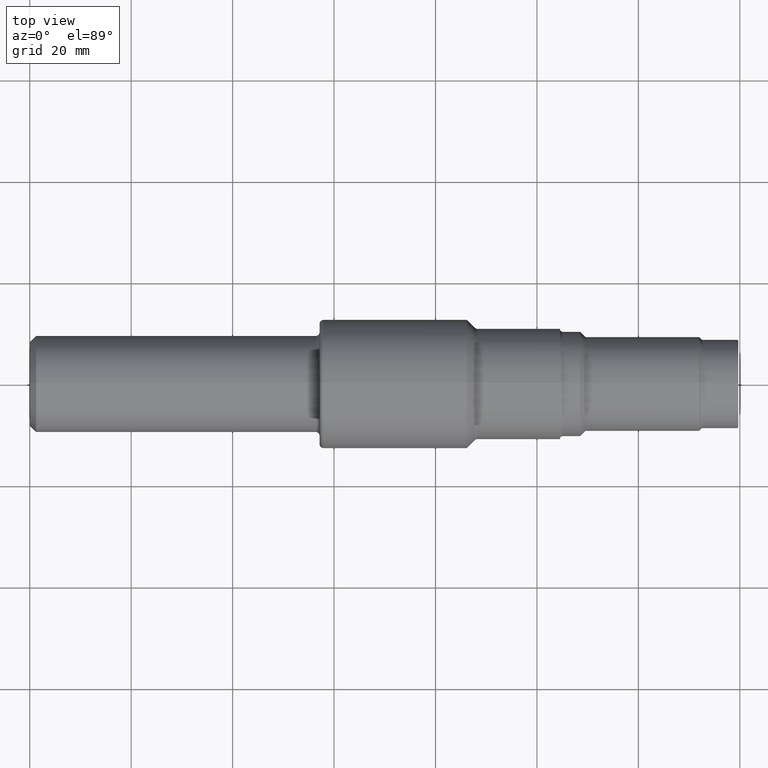
[diagram: clean part render]
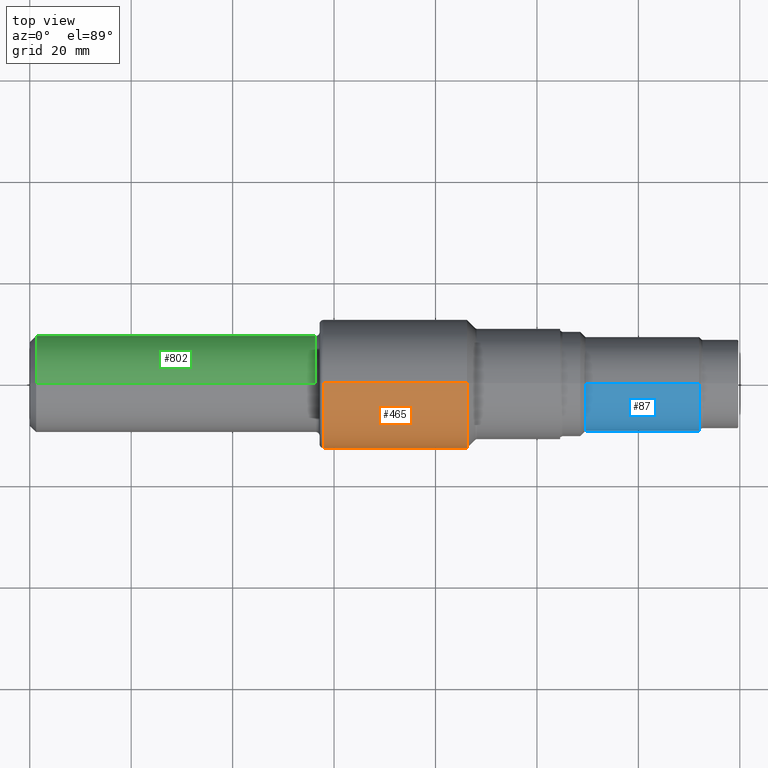
[diagram: same view with three faces highlighted in distinct colors, each labeled with its STEP entity id]
A machine part, top view with three faces highlighted in distinct colors.
Their STEP definitions:

[orange] entity #465 — the highlighted cylindrical surface (partial cylindrical patch) has radius 12.7 mm, axis along (-1, -0, -0).
#18 = ORIENTED_EDGE ( 'NONE', *, *, #685, .T. ) ;
#54 = CARTESIAN_POINT ( 'NONE',  ( 2.279999999999999805, 0.000000000000000000, 0.5000000000000000000 ) ) ;
#68 = LINE ( 'NONE', #1040, #582 ) ;
#122 = ORIENTED_EDGE ( 'NONE', *, *, #971, .T. ) ;
#150 = DIRECTION ( 'NONE',  ( 0.000000000000000000, 0.000000000000000000, 1.000000000000000000 ) ) ;
#163 = CARTESIAN_POINT ( 'NONE',  ( 3.394400000000000084, 0.000000000000000000, 0.000000000000000000 ) ) ;
#244 = EDGE_CURVE ( 'NONE', #461, #547, #1038, .T. ) ;
#259 = DIRECTION ( 'NONE',  ( 0.000000000000000000, 0.000000000000000000, 1.000000000000000000 ) ) ;
#277 = AXIS2_PLACEMENT_3D ( 'NONE', #163, #952, #150 ) ;
#284 = AXIS2_PLACEMENT_3D ( 'NONE', #285, #935, #612 ) ;
#285 = CARTESIAN_POINT ( 'NONE',  ( 2.279999999999999805, 0.000000000000000000, 0.000000000000000000 ) ) ;
#314 = CARTESIAN_POINT ( 'NONE',  ( 3.394400000000000084, 0.000000000000000000, 0.5000000000000000000 ) ) ;
#317 = CARTESIAN_POINT ( 'NONE',  ( 0.000000000000000000, 0.000000000000000000, 0.5000000000000000000 ) ) ;
#356 = VERTEX_POINT ( 'NONE', #314 ) ;
#395 = DIRECTION ( 'NONE',  ( -1.000000000000000000, -0.000000000000000000, -0.000000000000000000 ) ) ;
#426 = CIRCLE ( 'NONE', #277, 0.5000000000000000000 ) ;
#435 = DIRECTION ( 'NONE',  ( -1.000000000000000000, -0.000000000000000000, -0.000000000000000000 ) ) ;
#461 = VERTEX_POINT ( 'NONE', #498 ) ;
#465 = ADVANCED_FACE ( 'NONE', ( #668 ), #676, .T. ) ;
#468 = CARTESIAN_POINT ( 'NONE',  ( 3.394400000000000084, 6.123233995736766036E-17, -0.5000000000000000000 ) ) ;
#498 = CARTESIAN_POINT ( 'NONE',  ( 2.279999999999999805, 6.123233995736766036E-17, -0.5000000000000000000 ) ) ;
#543 = EDGE_LOOP ( 'NONE', ( #784, #18, #122, #758 ) ) ;
#547 = VERTEX_POINT ( 'NONE', #54 ) ;
#582 = VECTOR ( 'NONE', #395, 39.37007874015748143 ) ;
#600 = CARTESIAN_POINT ( 'NONE',  ( 0.000000000000000000, 0.000000000000000000, 0.000000000000000000 ) ) ;
#612 = DIRECTION ( 'NONE',  ( 0.000000000000000000, 0.000000000000000000, 1.000000000000000000 ) ) ;
#652 = AXIS2_PLACEMENT_3D ( 'NONE', #600, #435, #259 ) ;
#668 = FACE_OUTER_BOUND ( 'NONE', #543, .T. ) ;
#673 = VERTEX_POINT ( 'NONE', #468 ) ;
#676 = CYLINDRICAL_SURFACE ( 'NONE', #652, 0.5000000000000000000 ) ;
#685 = EDGE_CURVE ( 'NONE', #673, #356, #426, .T. ) ;
#694 = EDGE_CURVE ( 'NONE', #673, #461, #68, .T. ) ;
#758 = ORIENTED_EDGE ( 'NONE', *, *, #244, .F. ) ;
#784 = ORIENTED_EDGE ( 'NONE', *, *, #694, .F. ) ;
#874 = DIRECTION ( 'NONE',  ( -1.000000000000000000, -0.000000000000000000, -0.000000000000000000 ) ) ;
#935 = DIRECTION ( 'NONE',  ( -1.000000000000000000, -0.000000000000000000, -0.000000000000000000 ) ) ;
#952 = DIRECTION ( 'NONE',  ( -1.000000000000000000, -0.000000000000000000, -0.000000000000000000 ) ) ;
#955 = LINE ( 'NONE', #317, #1034 ) ;
#971 = EDGE_CURVE ( 'NONE', #356, #547, #955, .T. ) ;
#1034 = VECTOR ( 'NONE', #874, 39.37007874015748143 ) ;
#1038 = CIRCLE ( 'NONE', #284, 0.5000000000000000000 ) ;
#1040 = CARTESIAN_POINT ( 'NONE',  ( 0.000000000000000000, 6.123233995736766036E-17, -0.5000000000000000000 ) ) ;

[blue] entity #87 — the highlighted cylindrical surface (partial cylindrical patch) has radius 9.2964 mm, axis along (-1, -0, -0).
#21 = FACE_OUTER_BOUND ( 'NONE', #433, .T. ) ;
#46 = VERTEX_POINT ( 'NONE', #657 ) ;
#83 = CIRCLE ( 'NONE', #949, 0.3659999999999999920 ) ;
#87 = ADVANCED_FACE ( 'NONE', ( #21 ), #677, .T. ) ;
#94 = CARTESIAN_POINT ( 'NONE',  ( 0.000000000000000000, 4.482207284879313290E-17, -0.3659999999999999920 ) ) ;
#107 = CARTESIAN_POINT ( 'NONE',  ( 0.000000000000000000, 0.000000000000000000, 0.3659999999999999920 ) ) ;
#175 = LINE ( 'NONE', #94, #229 ) ;
#186 = CARTESIAN_POINT ( 'NONE',  ( 4.313900000000002066, 0.000000000000000000, 0.000000000000000000 ) ) ;
#229 = VECTOR ( 'NONE', #265, 39.37007874015748143 ) ;
#265 = DIRECTION ( 'NONE',  ( -1.000000000000000000, -0.000000000000000000, -0.000000000000000000 ) ) ;
#385 = CARTESIAN_POINT ( 'NONE',  ( 5.195500000000000007, 0.000000000000000000, 0.3659999999999999920 ) ) ;
#407 = CARTESIAN_POINT ( 'NONE',  ( 5.195500000000000007, 0.000000000000000000, 0.000000000000000000 ) ) ;
#429 = CARTESIAN_POINT ( 'NONE',  ( 0.000000000000000000, 0.000000000000000000, 0.000000000000000000 ) ) ;
#433 = EDGE_LOOP ( 'NONE', ( #860, #620, #542, #747 ) ) ;
#436 = EDGE_CURVE ( 'NONE', #1022, #46, #623, .T. ) ;
#449 = EDGE_CURVE ( 'NONE', #512, #1022, #175, .T. ) ;
#477 = EDGE_CURVE ( 'NONE', #873, #46, #743, .T. ) ;
#494 = CARTESIAN_POINT ( 'NONE',  ( 4.313900000000002066, 4.482207284879313290E-17, -0.3659999999999999920 ) ) ;
#504 = DIRECTION ( 'NONE',  ( 0.000000000000000000, 0.000000000000000000, 1.000000000000000000 ) ) ;
#512 = VERTEX_POINT ( 'NONE', #1024 ) ;
#519 = AXIS2_PLACEMENT_3D ( 'NONE', #429, #670, #997 ) ;
#538 = VECTOR ( 'NONE', #990, 39.37007874015748143 ) ;
#542 = ORIENTED_EDGE ( 'NONE', *, *, #477, .T. ) ;
#620 = ORIENTED_EDGE ( 'NONE', *, *, #795, .T. ) ;
#623 = CIRCLE ( 'NONE', #755, 0.3659999999999999920 ) ;
#657 = CARTESIAN_POINT ( 'NONE',  ( 4.313900000000002066, 0.000000000000000000, 0.3659999999999999920 ) ) ;
#670 = DIRECTION ( 'NONE',  ( -1.000000000000000000, -0.000000000000000000, -0.000000000000000000 ) ) ;
#677 = CYLINDRICAL_SURFACE ( 'NONE', #519, 0.3659999999999999920 ) ;
#681 = DIRECTION ( 'NONE',  ( -1.000000000000000000, -0.000000000000000000, -0.000000000000000000 ) ) ;
#732 = DIRECTION ( 'NONE',  ( -1.000000000000000000, -0.000000000000000000, -0.000000000000000000 ) ) ;
#737 = DIRECTION ( 'NONE',  ( 0.000000000000000000, 0.000000000000000000, 1.000000000000000000 ) ) ;
#743 = LINE ( 'NONE', #107, #538 ) ;
#747 = ORIENTED_EDGE ( 'NONE', *, *, #436, .F. ) ;
#755 = AXIS2_PLACEMENT_3D ( 'NONE', #186, #681, #504 ) ;
#795 = EDGE_CURVE ( 'NONE', #512, #873, #83, .T. ) ;
#860 = ORIENTED_EDGE ( 'NONE', *, *, #449, .F. ) ;
#873 = VERTEX_POINT ( 'NONE', #385 ) ;
#949 = AXIS2_PLACEMENT_3D ( 'NONE', #407, #732, #737 ) ;
#990 = DIRECTION ( 'NONE',  ( -1.000000000000000000, -0.000000000000000000, -0.000000000000000000 ) ) ;
#997 = DIRECTION ( 'NONE',  ( 0.000000000000000000, 0.000000000000000000, 1.000000000000000000 ) ) ;
#1022 = VERTEX_POINT ( 'NONE', #494 ) ;
#1024 = CARTESIAN_POINT ( 'NONE',  ( 5.195500000000000007, 4.482207284879312058E-17, -0.3659999999999999920 ) ) ;

[green] entity #802 — the highlighted cylindrical surface (partial cylindrical patch) has radius 9.5212 mm, axis along (-1, -0, -0).
#45 = CARTESIAN_POINT ( 'NONE',  ( 2.220000000000000195, 0.000000000000000000, 0.3748500000000000165 ) ) ;
#78 = ORIENTED_EDGE ( 'NONE', *, *, #370, .T. ) ;
#93 = EDGE_LOOP ( 'NONE', ( #425, #78, #131, #311 ) ) ;
#125 = AXIS2_PLACEMENT_3D ( 'NONE', #366, #698, #942 ) ;
#131 = ORIENTED_EDGE ( 'NONE', *, *, #654, .F. ) ;
#146 = DIRECTION ( 'NONE',  ( 0.000000000000000000, 0.000000000000000000, 1.000000000000000000 ) ) ;
#171 = CARTESIAN_POINT ( 'NONE',  ( 0.000000000000000000, 0.000000000000000000, 0.3748500000000000165 ) ) ;
#204 = VERTEX_POINT ( 'NONE', #45 ) ;
#232 = DIRECTION ( 'NONE',  ( -1.000000000000000000, -0.000000000000000000, -0.000000000000000000 ) ) ;
#234 = EDGE_CURVE ( 'NONE', #204, #1043, #608, .T. ) ;
#258 = DIRECTION ( 'NONE',  ( 0.000000000000000000, 0.000000000000000000, 1.000000000000000000 ) ) ;
#264 = CARTESIAN_POINT ( 'NONE',  ( 0.000000000000000000, 0.000000000000000000, 0.000000000000000000 ) ) ;
#311 = ORIENTED_EDGE ( 'NONE', *, *, #930, .F. ) ;
#334 = CARTESIAN_POINT ( 'NONE',  ( 2.220000000000000195, 4.774285546475956938E-17, -0.3748500000000000165 ) ) ;
#366 = CARTESIAN_POINT ( 'NONE',  ( 2.220000000000000195, 0.000000000000000000, 0.000000000000000000 ) ) ;
#370 = EDGE_CURVE ( 'NONE', #1043, #710, #722, .T. ) ;
#424 = VERTEX_POINT ( 'NONE', #656 ) ;
#425 = ORIENTED_EDGE ( 'NONE', *, *, #234, .T. ) ;
#457 = CIRCLE ( 'NONE', #767, 0.3748500000000000165 ) ;
#484 = CARTESIAN_POINT ( 'NONE',  ( 0.05000000000000000278, 4.590588526603853748E-17, -0.3748500000000000165 ) ) ;
#485 = CARTESIAN_POINT ( 'NONE',  ( 0.000000000000000000, 4.590588526603853748E-17, -0.3748500000000000165 ) ) ;
#503 = FACE_OUTER_BOUND ( 'NONE', #93, .T. ) ;
#557 = VECTOR ( 'NONE', #1046, 39.37007874015748143 ) ;
#608 = CIRCLE ( 'NONE', #125, 0.3748500000000000165 ) ;
#654 = EDGE_CURVE ( 'NONE', #424, #710, #457, .T. ) ;
#656 = CARTESIAN_POINT ( 'NONE',  ( 0.05000000000000000278, 0.000000000000000000, 0.3748500000000000165 ) ) ;
#698 = DIRECTION ( 'NONE',  ( -1.000000000000000000, -0.000000000000000000, -0.000000000000000000 ) ) ;
#710 = VERTEX_POINT ( 'NONE', #484 ) ;
#721 = DIRECTION ( 'NONE',  ( -1.000000000000000000, -0.000000000000000000, -0.000000000000000000 ) ) ;
#722 = LINE ( 'NONE', #485, #557 ) ;
#767 = AXIS2_PLACEMENT_3D ( 'NONE', #966, #232, #146 ) ;
#770 = AXIS2_PLACEMENT_3D ( 'NONE', #264, #909, #258 ) ;
#802 = ADVANCED_FACE ( 'NONE', ( #503 ), #984, .T. ) ;
#806 = LINE ( 'NONE', #171, #832 ) ;
#832 = VECTOR ( 'NONE', #721, 39.37007874015748143 ) ;
#909 = DIRECTION ( 'NONE',  ( -1.000000000000000000, -0.000000000000000000, -0.000000000000000000 ) ) ;
#930 = EDGE_CURVE ( 'NONE', #204, #424, #806, .T. ) ;
#942 = DIRECTION ( 'NONE',  ( 0.000000000000000000, 0.000000000000000000, 1.000000000000000000 ) ) ;
#966 = CARTESIAN_POINT ( 'NONE',  ( 0.05000000000000000278, 0.000000000000000000, 0.000000000000000000 ) ) ;
#984 = CYLINDRICAL_SURFACE ( 'NONE', #770, 0.3748500000000000165 ) ;
#1043 = VERTEX_POINT ( 'NONE', #334 ) ;
#1046 = DIRECTION ( 'NONE',  ( -1.000000000000000000, -0.000000000000000000, -0.000000000000000000 ) ) ;